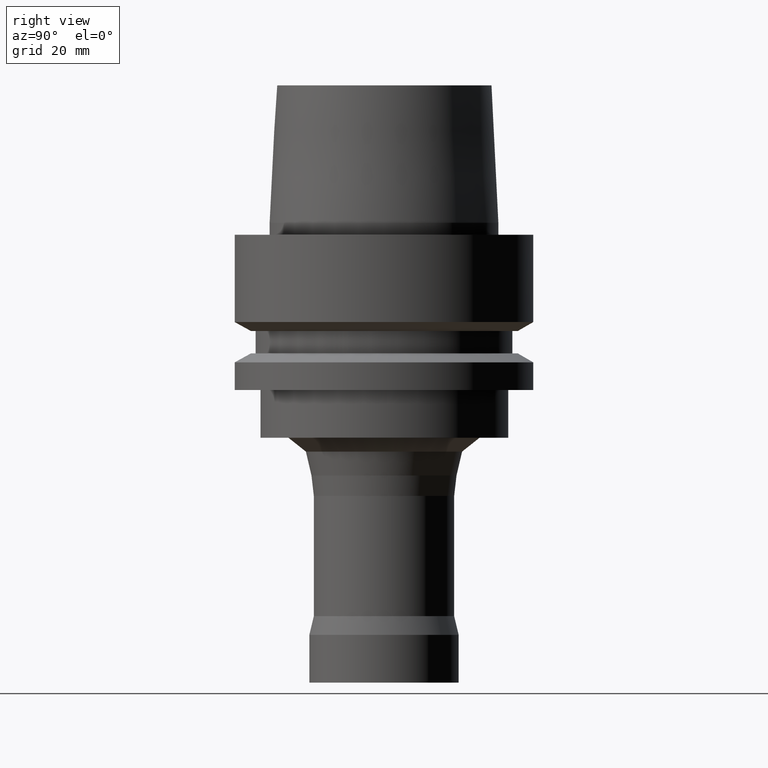
[diagram: clean part render]
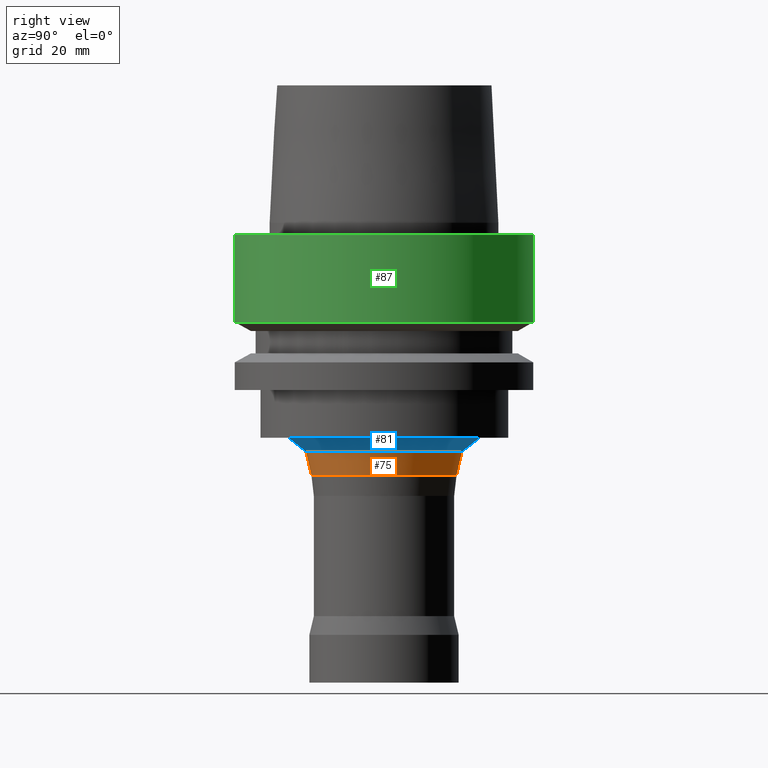
[diagram: same view with three faces highlighted in distinct colors, each labeled with its STEP entity id]
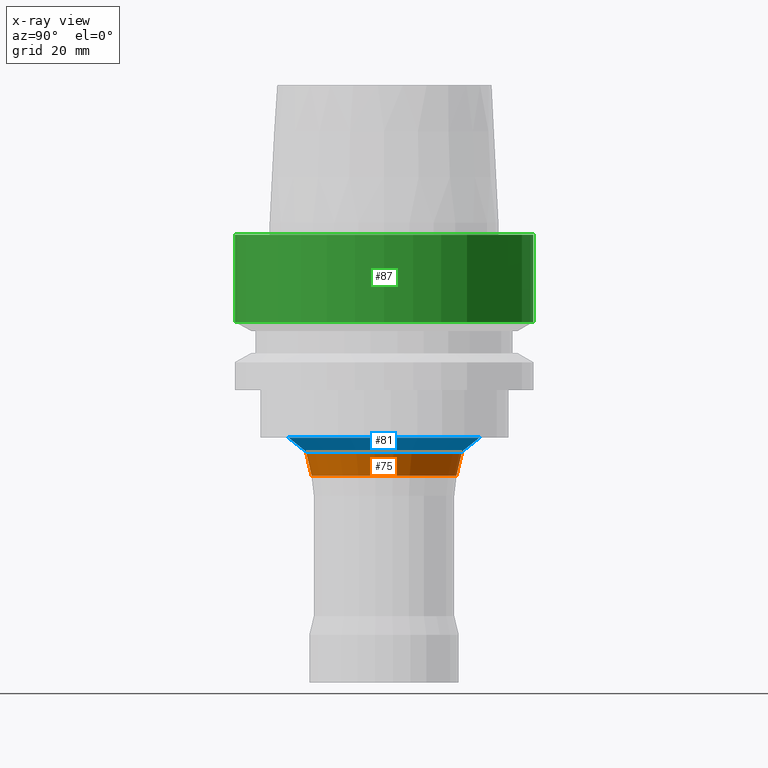
[diagram: x-ray of the same camera — body ghosted, the three highlighted faces saturated]
A machine part, right view with three faces highlighted in distinct colors.
The next image is the same camera in x-ray (body ghosted, the three faces saturated) — at least one of them is partly hidden behind the body in this view.
Their STEP definitions:

[orange] entity #75 — the highlighted conical surface has half-angle 13.16 deg.
#75=ADVANCED_FACE('',(#97,#98),#99,.T.);
#97=FACE_BOUND('',#158,.T.);
#98=FACE_BOUND('',#159,.T.);
#99=CONICAL_SURFACE('',#160,12.6113681969447,0.229690679960957);
#158=EDGE_LOOP('',(#219));
#159=EDGE_LOOP('',(#220));
#160=AXIS2_PLACEMENT_3D('',#221,#222,#223);
#219=ORIENTED_EDGE('',*,*,#322,.F.);
#220=ORIENTED_EDGE('',*,*,#323,.T.);
#221=CARTESIAN_POINT('',(2.34618200904372E-015,4.69236401808743E-015,-38.3160599558537));
#222=DIRECTION('',(-6.12323399573677E-017,-1.22464679914735E-016,1.0));
#223=DIRECTION('',(-1.23259516440783E-032,1.0,1.22464679914735E-016));
#322=EDGE_CURVE('',#342,#342,#343,.T.);
#323=EDGE_CURVE('',#344,#344,#345,.T.);
#342=VERTEX_POINT('',#382);
#343=CIRCLE('',#383,12.1439469951138);
#344=VERTEX_POINT('',#384);
#345=CIRCLE('',#385,13.0787893987756);
#382=CARTESIAN_POINT('',(2.46859090449758E-015,12.1439469951138,-40.315148926471));
#383=AXIS2_PLACEMENT_3D('',#422,#423,#424);
#384=CARTESIAN_POINT('',(2.22377311358985E-015,13.0787893987756,-36.3169709852364));
#385=AXIS2_PLACEMENT_3D('',#425,#426,#427);
#422=CARTESIAN_POINT('',(2.46859090449758E-015,4.93718180899515E-015,-40.315148926471));
#423=DIRECTION('',(6.12323399573677E-017,1.22464679914735E-016,-1.0));
#424=DIRECTION('',(-1.23259516440783E-032,1.0,1.22464679914735E-016));
#425=CARTESIAN_POINT('',(2.22377311358985E-015,4.44754622717971E-015,-36.3169709852364));
#426=DIRECTION('',(6.12323399573677E-017,1.22464679914735E-016,-1.0));
#427=DIRECTION('',(-1.23259516440783E-032,1.0,1.22464679914735E-016));

[blue] entity #81 — the highlighted conical surface has half-angle 51.58 deg.
#81=ADVANCED_FACE('',(#114,#115),#116,.T.);
#114=FACE_BOUND('',#175,.T.);
#115=FACE_BOUND('',#176,.T.);
#116=CONICAL_SURFACE('',#177,14.5393946993878,0.900243503788189);
#175=EDGE_LOOP('',(#248));
#176=EDGE_LOOP('',(#249));
#177=AXIS2_PLACEMENT_3D('',#250,#251,#252);
#248=ORIENTED_EDGE('',*,*,#323,.F.);
#249=ORIENTED_EDGE('',*,*,#328,.F.);
#250=CARTESIAN_POINT('',(2.15283633607018E-015,4.30567267214035E-015,-35.1584854926182));
#251=DIRECTION('',(-6.12323399573677E-017,-1.22464679914735E-016,1.0));
#252=DIRECTION('',(-1.23259516440783E-032,1.0,1.22464679914735E-016));
#323=EDGE_CURVE('',#344,#344,#345,.T.);
#328=EDGE_CURVE('',#354,#354,#355,.T.);
#344=VERTEX_POINT('',#384);
#345=CIRCLE('',#385,13.0787893987756);
#354=VERTEX_POINT('',#394);
#355=CIRCLE('',#395,16.0);
#384=CARTESIAN_POINT('',(2.22377311358985E-015,13.0787893987756,-36.3169709852364));
#385=AXIS2_PLACEMENT_3D('',#425,#426,#427);
#394=CARTESIAN_POINT('',(2.0818995585505E-015,16.0,-34.0));
#395=AXIS2_PLACEMENT_3D('',#440,#441,#442);
#425=CARTESIAN_POINT('',(2.22377311358985E-015,4.44754622717971E-015,-36.3169709852364));
#426=DIRECTION('',(6.12323399573677E-017,1.22464679914735E-016,-1.0));
#427=DIRECTION('',(-1.23259516440783E-032,1.0,1.22464679914735E-016));
#440=CARTESIAN_POINT('',(2.0818995585505E-015,4.163799117101E-015,-34.0));
#441=DIRECTION('',(-6.12323399573677E-017,-1.22464679914735E-016,1.0));
#442=DIRECTION('',(-1.23259516440783E-032,1.0,1.22464679914735E-016));

[green] entity #87 — the highlighted cylindrical surface (bore or boss wall) has radius 25 mm, axis along (-0, -0, 1).
#87=ADVANCED_FACE('',(#131,#132),#133,.T.);
#131=FACE_BOUND('',#192,.T.);
#132=FACE_BOUND('',#193,.T.);
#133=CYLINDRICAL_SURFACE('',#194,25.0);
#192=EDGE_LOOP('',(#277));
#193=EDGE_LOOP('',(#278));
#194=AXIS2_PLACEMENT_3D('',#279,#280,#281);
#277=ORIENTED_EDGE('',*,*,#334,.F.);
#278=ORIENTED_EDGE('',*,*,#333,.T.);
#279=CARTESIAN_POINT('',(4.47684973986342E-016,8.95369947972685E-016,-7.311250465));
#280=DIRECTION('',(-6.12323399573677E-017,-1.22464679914735E-016,1.0));
#281=DIRECTION('',(-1.23259516440783E-032,1.0,1.22464679914735E-016));
#333=EDGE_CURVE('',#364,#364,#365,.T.);
#334=EDGE_CURVE('',#366,#366,#367,.T.);
#364=VERTEX_POINT('',#404);
#365=CIRCLE('',#405,25.0);
#366=VERTEX_POINT('',#406);
#367=CIRCLE('',#407,25.0);
#404=CARTESIAN_POINT('',(-3.08148791101958E-031,25.0,3.06161699786838E-015));
#405=AXIS2_PLACEMENT_3D('',#455,#456,#457);
#406=CARTESIAN_POINT('',(8.95369947972684E-016,25.0,-14.62250093));
#407=AXIS2_PLACEMENT_3D('',#458,#459,#460);
#455=CARTESIAN_POINT('',(0.0,0.0,0.0));
#456=DIRECTION('',(6.12323399573677E-017,1.22464679914735E-016,-1.0));
#457=DIRECTION('',(-1.23259516440783E-032,1.0,1.22464679914735E-016));
#458=CARTESIAN_POINT('',(8.95369947972685E-016,1.79073989594537E-015,-14.62250093));
#459=DIRECTION('',(6.12323399573677E-017,1.22464679914735E-016,-1.0));
#460=DIRECTION('',(-1.23259516440783E-032,1.0,1.22464679914735E-016));